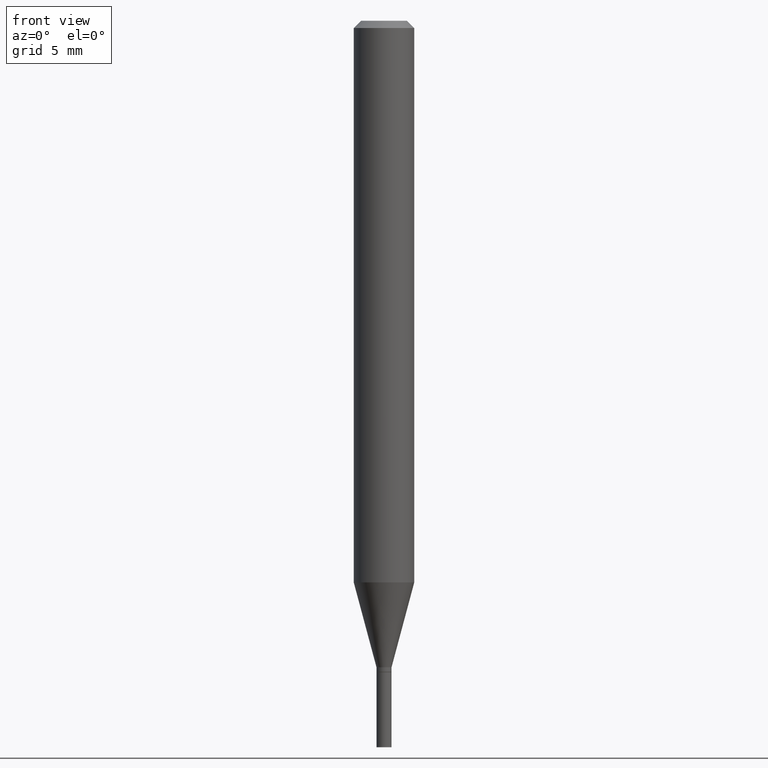
[diagram: clean part render]
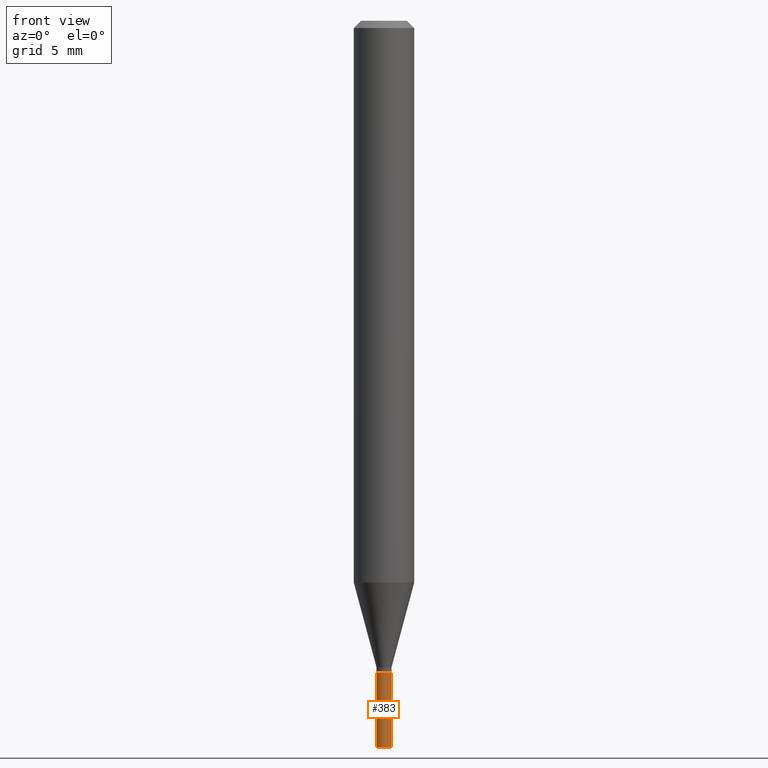
[diagram: same view with one face highlighted and labeled with its STEP entity id]
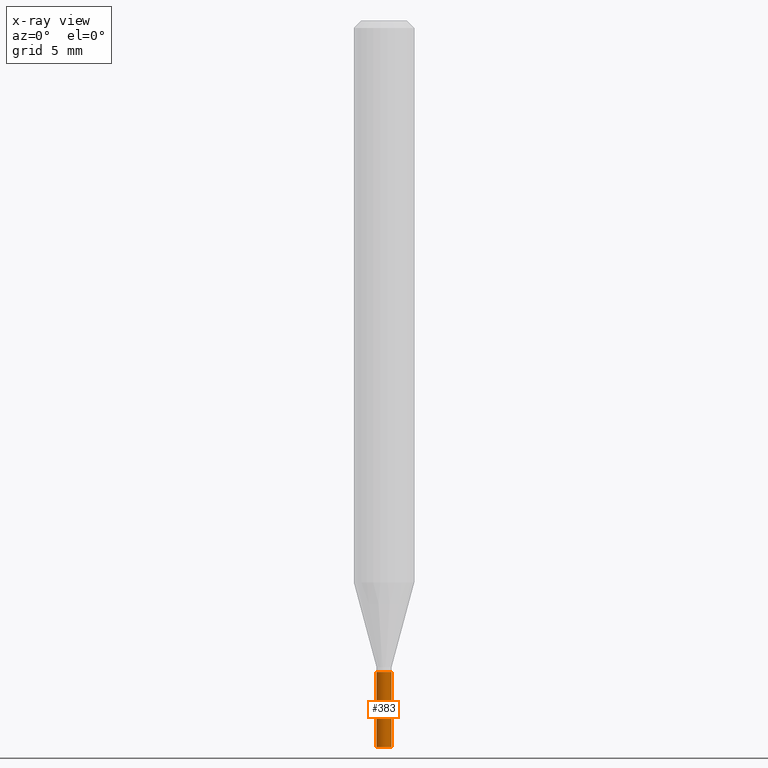
[diagram: x-ray of the same camera — body ghosted, the highlighted face saturated]
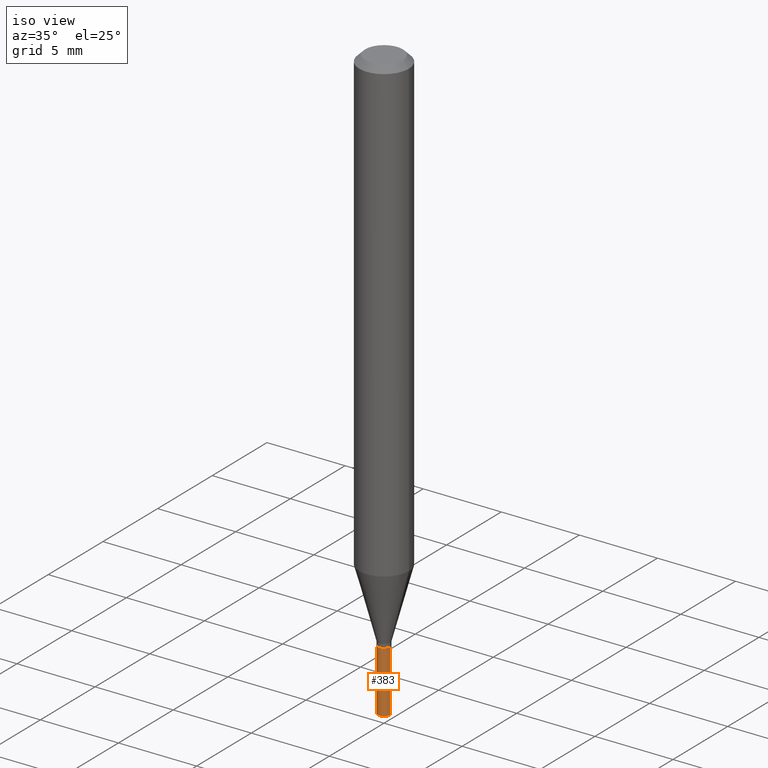
[diagram: same view with one face highlighted and labeled with its STEP entity id]
A machine part, front view. The second image highlights one B-rep face of the part: STEP entity #383.
The next image is the same camera in x-ray: the body ghosted, the highlighted face saturated — about 0% of this face is hidden behind the body in this view.
A second angle (iso view) of the same face is appended — the face is thin or edge-on in the first view.
In plain terms, the highlighted cylindrical surface (edge-blend (fillet) strip) has radius 0.3937 mm, axis along (-0, 0, 1).
Its self-contained STEP definition (entity closure, byte-faithful):
#23 = CYLINDRICAL_SURFACE ( 'NONE', #247, 0.01549999999999999989 ) ;
#29 = VERTEX_POINT ( 'NONE', #243 ) ;
#35 = AXIS2_PLACEMENT_3D ( 'NONE', #461, #313, #168 ) ;
#46 = CARTESIAN_POINT ( 'NONE',  ( -0.01549999999999999989, -4.856498080461560425E-15, -1.500000000000000222 ) ) ;
#62 = EDGE_CURVE ( 'NONE', #29, #138, #235, .T. ) ;
#83 = EDGE_CURVE ( 'NONE', #166, #306, #305, .T. ) ;
#110 = ORIENTED_EDGE ( 'NONE', *, *, #62, .T. ) ;
#126 = CARTESIAN_POINT ( 'NONE',  ( 0.000000000000000000, 0.000000000000000000, 0.000000000000000000 ) ) ;
#138 = VERTEX_POINT ( 'NONE', #175 ) ;
#141 = DIRECTION ( 'NONE',  ( -2.445468806185136877E-29, 3.491481338843145188E-15, 1.000000000000000000 ) ) ;
#155 = DIRECTION ( 'NONE',  ( -2.445468806185136597E-29, 3.491481338843145583E-15, 1.000000000000000000 ) ) ;
#161 = FACE_OUTER_BOUND ( 'NONE', #214, .T. ) ;
#166 = VERTEX_POINT ( 'NONE', #46 ) ;
#168 = DIRECTION ( 'NONE',  ( 1.000000000000000000, -6.982962677686238312E-15, 0.000000000000000000 ) ) ;
#175 = CARTESIAN_POINT ( 'NONE',  ( 0.01549999999999999989, -4.804278322248168726E-15, -1.345000000000000195 ) ) ;
#204 = DIRECTION ( 'NONE',  ( -2.445468806185136877E-29, 3.491481338843145188E-15, 1.000000000000000000 ) ) ;
#214 = EDGE_LOOP ( 'NONE', ( #394, #227, #110, #266 ) ) ;
#227 = ORIENTED_EDGE ( 'NONE', *, *, #308, .T. ) ;
#235 = LINE ( 'NONE', #418, #351 ) ;
#238 = CIRCLE ( 'NONE', #339, 0.01549999999999999989 ) ;
#243 = CARTESIAN_POINT ( 'NONE',  ( 0.01549999999999999989, -5.345457929768855342E-15, -1.500000000000000222 ) ) ;
#247 = AXIS2_PLACEMENT_3D ( 'NONE', #126, #155, #405 ) ;
#252 = VECTOR ( 'NONE', #141, 39.37007874015748143 ) ;
#266 = ORIENTED_EDGE ( 'NONE', *, *, #426, .F. ) ;
#298 = DIRECTION ( 'NONE',  ( 1.000000000000000000, -6.982962677686238312E-15, 0.000000000000000000 ) ) ;
#302 = CIRCLE ( 'NONE', #35, 0.01549999999999999989 ) ;
#305 = LINE ( 'NONE', #455, #252 ) ;
#306 = VERTEX_POINT ( 'NONE', #369 ) ;
#308 = EDGE_CURVE ( 'NONE', #166, #29, #238, .T. ) ;
#313 = DIRECTION ( 'NONE',  ( -2.445468806185136597E-29, 3.491481338843145583E-15, 1.000000000000000000 ) ) ;
#339 = AXIS2_PLACEMENT_3D ( 'NONE', #340, #377, #298 ) ;
#340 = CARTESIAN_POINT ( 'NONE',  ( 3.668203209277704895E-29, -5.237222008264718177E-15, -1.500000000000000222 ) ) ;
#351 = VECTOR ( 'NONE', #204, 39.37007874015748143 ) ;
#369 = CARTESIAN_POINT ( 'NONE',  ( -0.01549999999999999989, -4.856498080461560425E-15, -1.345000000000000195 ) ) ;
#377 = DIRECTION ( 'NONE',  ( -2.445468806185136597E-29, 3.491481338843145583E-15, 1.000000000000000000 ) ) ;
#383 = ADVANCED_FACE ( 'NONE', ( #161 ), #23, .T. ) ;
#394 = ORIENTED_EDGE ( 'NONE', *, *, #83, .F. ) ;
#405 = DIRECTION ( 'NONE',  ( 1.000000000000000000, -6.982962677686266711E-15, 4.876176775795935232E-29 ) ) ;
#418 = CARTESIAN_POINT ( 'NONE',  ( 0.01549999999999999989, -1.082359215041371286E-16, 7.558074002483699918E-31 ) ) ;
#426 = EDGE_CURVE ( 'NONE', #306, #138, #302, .T. ) ;
#455 = CARTESIAN_POINT ( 'NONE',  ( -0.01549999999999999989, 1.101341240428155280E-16, -7.624349389895103058E-31 ) ) ;
#461 = CARTESIAN_POINT ( 'NONE',  ( 3.289155544319009306E-29, -4.696042400744032349E-15, -1.345000000000000195 ) ) ;